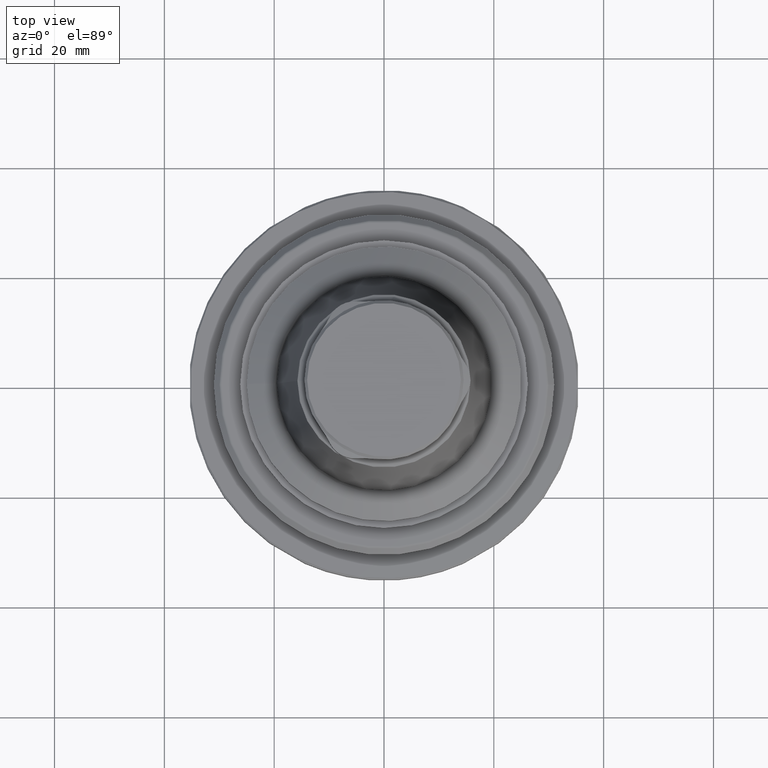
[diagram: clean part render]
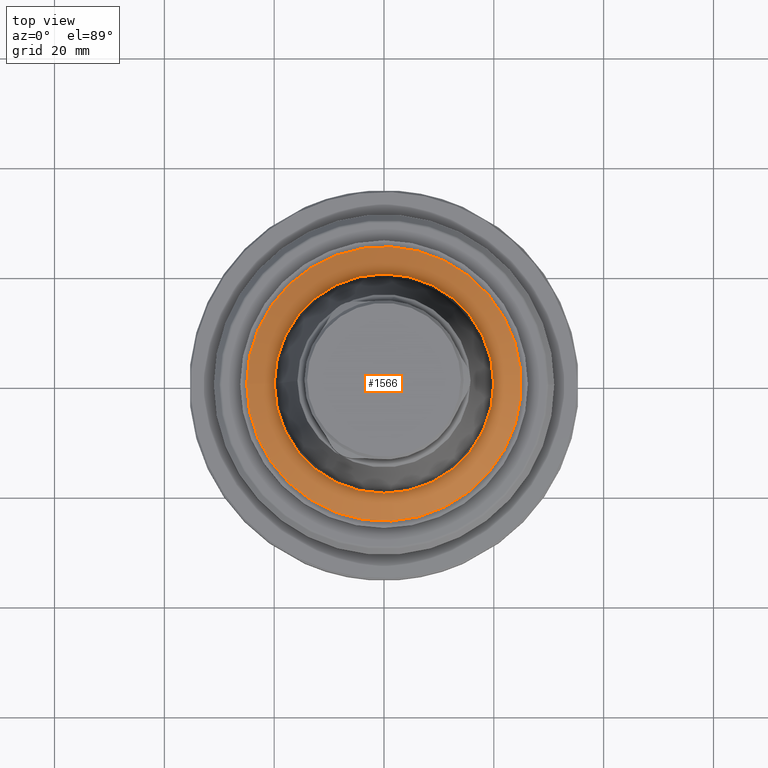
[diagram: same view with one face highlighted and labeled with its STEP entity id]
A machine part, top view. The second image highlights one B-rep face of the part: STEP entity #1566.
In plain terms, the highlighted conical surface has half-angle 60 deg.
Its self-contained STEP definition (entity closure, byte-faithful):
#696=ORIENTED_EDGE('',*,*,#920,.T.);
#697=ORIENTED_EDGE('',*,*,#921,.F.);
#920=EDGE_CURVE('',#1071,#1071,#1158,.T.);
#921=EDGE_CURVE('',#1072,#1072,#1159,.T.);
#1071=VERTEX_POINT('',#2895);
#1072=VERTEX_POINT('',#2898);
#1158=CIRCLE('',#1761,19.9770526580503);
#1159=CIRCLE('',#1763,25.);
#1289=EDGE_LOOP('',(#696));
#1290=EDGE_LOOP('',(#697));
#1429=FACE_BOUND('',#1289,.T.);
#1430=FACE_BOUND('',#1290,.T.);
#1469=CONICAL_SURFACE('',#1762,25.,1.0471975511966);
#1566=ADVANCED_FACE('',(#1429,#1430),#1469,.T.);
#1761=AXIS2_PLACEMENT_3D('',#2894,#2184,#2185);
#1762=AXIS2_PLACEMENT_3D('',#2896,#2186,#2187);
#1763=AXIS2_PLACEMENT_3D('',#2897,#2188,#2189);
#2184=DIRECTION('',(1.36857681022975E-16,-2.14234486761019E-32,-1.));
#2185=DIRECTION('',(-1.,1.83694883835627E-16,-1.36857681022975E-16));
#2186=DIRECTION('',(1.36857681022975E-16,-2.14234486761019E-32,-1.));
#2187=DIRECTION('',(-1.,1.83694883835627E-16,-1.36857681022975E-16));
#2188=DIRECTION('',(1.36857681022975E-16,-2.14234486761019E-32,-1.));
#2189=DIRECTION('',(-1.,1.83694883835627E-16,-1.36857681022975E-16));
#2894=CARTESIAN_POINT('',(3.893041531344E-15,-2.15353457239194E-15,15.398889300107));
#2895=CARTESIAN_POINT('',(-19.9770526580503,1.51614779500682E-15,15.398889300107));
#2896=CARTESIAN_POINT('',(4.28992880631063E-15,-2.15353457239194E-15,12.498889300107));
#2897=CARTESIAN_POINT('',(4.28992880631063E-15,-2.15353457239194E-15,12.498889300107));
#2898=CARTESIAN_POINT('',(-25.,2.43883752349875E-15,12.498889300107));